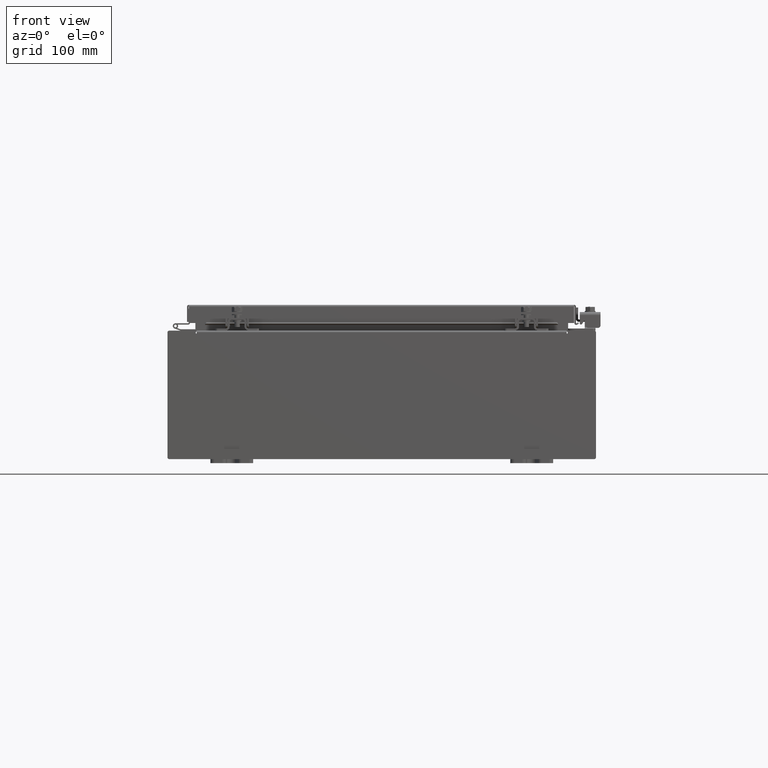
[diagram: clean part render]
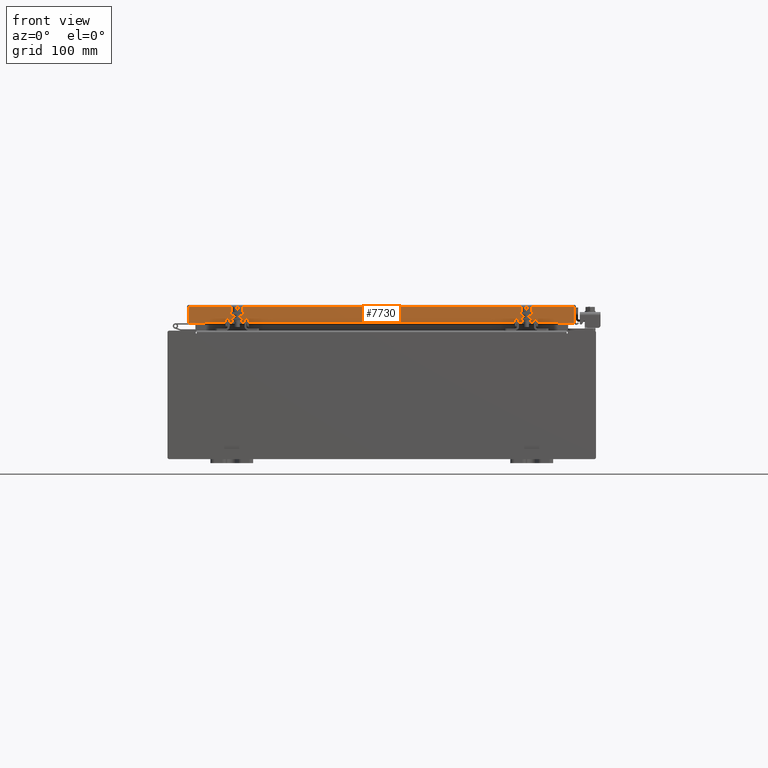
[diagram: same view with one face highlighted and labeled with its STEP entity id]
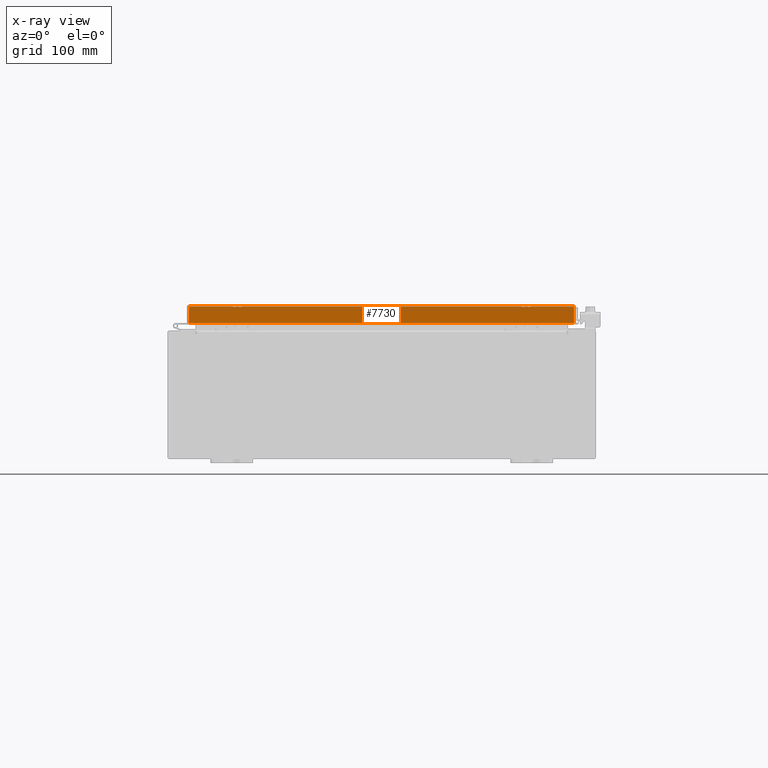
[diagram: x-ray of the same camera — body ghosted, the highlighted face saturated]
A machine part, front view. The second image highlights one B-rep face of the part: STEP entity #7730.
The next image is the same camera in x-ray: the body ghosted, the highlighted face saturated — about 0% of this face is hidden behind the body in this view.
In plain terms, the highlighted planar face has unit normal (-0, 1, -0).
Its self-contained STEP definition (entity closure, byte-faithful):
#473 = EDGE_CURVE ( 'NONE', #5032, #15643, #28205, .T. ) ;
#773 = VECTOR ( 'NONE', #9290, 39.37007874015748100 ) ;
#958 = EDGE_CURVE ( 'NONE', #15643, #23984, #19177, .T. ) ;
#1105 = VERTEX_POINT ( 'NONE', #15437 ) ;
#1768 = DIRECTION ( 'NONE',  ( -1.000000000000000000, -1.203722403024570700E-016, 1.203722403024570700E-016 ) ) ;
#2553 = LINE ( 'NONE', #32036, #14306 ) ;
#3169 = LINE ( 'NONE', #13774, #15652 ) ;
#5032 = VERTEX_POINT ( 'NONE', #28103 ) ;
#6160 = CARTESIAN_POINT ( 'NONE',  ( -8.989157864376267100, -11.09400000000000700, -0.8499999999999975400 ) ) ;
#6659 = LINE ( 'NONE', #25406, #19079 ) ;
#7730 = ADVANCED_FACE ( 'NONE', ( #17451 ), #24196, .F. ) ;
#8361 = VECTOR ( 'NONE', #1768, 39.37007874015748100 ) ;
#9290 = DIRECTION ( 'NONE',  ( -1.000000000000000000, 0.0000000000000000000, 0.0000000000000000000 ) ) ;
#10951 = CARTESIAN_POINT ( 'NONE',  ( 9.077999999999999400, -11.09400000000000300, -0.8499999999999996400 ) ) ;
#11589 = VERTEX_POINT ( 'NONE', #15070 ) ;
#11829 = DIRECTION ( 'NONE',  ( 0.0000000000000000000, 2.818880942772360100E-015, 1.000000000000000000 ) ) ;
#11954 = ORIENTED_EDGE ( 'NONE', *, *, #25688, .F. ) ;
#12251 = CARTESIAN_POINT ( 'NONE',  ( -8.239157864376267100, -11.09399999999999900, -0.8500000000000017500 ) ) ;
#12764 = CARTESIAN_POINT ( 'NONE',  ( 8.239157864376267100, -11.09399999999999900, -0.8500000000000017500 ) ) ;
#13598 = ORIENTED_EDGE ( 'NONE', *, *, #958, .F. ) ;
#13774 = CARTESIAN_POINT ( 'NONE',  ( -8.989157864376267100, -11.09400000000000100, 3.153347883512815000E-014 ) ) ;
#14306 = VECTOR ( 'NONE', #19536, 39.37007874015748100 ) ;
#14784 = CARTESIAN_POINT ( 'NONE',  ( 8.239157864376267100, -11.09399999999999900, -0.8500000000000017500 ) ) ;
#15070 = CARTESIAN_POINT ( 'NONE',  ( -8.989157864376267100, -11.09400000000000100, -0.08769999999999789100 ) ) ;
#15437 = CARTESIAN_POINT ( 'NONE',  ( 8.989157864376267100, -11.09400000000000100, -0.08769999999999897300 ) ) ;
#15583 = DIRECTION ( 'NONE',  ( -0.0000000000000000000, -2.818880942772360100E-015, -1.000000000000000000 ) ) ;
#15643 = VERTEX_POINT ( 'NONE', #14784 ) ;
#15652 = VECTOR ( 'NONE', #16261, 39.37007874015748100 ) ;
#16261 = DIRECTION ( 'NONE',  ( 0.0000000000000000000, -2.818880942772360100E-015, -1.000000000000000000 ) ) ;
#17283 = AXIS2_PLACEMENT_3D ( 'NONE', #31696, #26718, #11829 ) ;
#17451 = FACE_OUTER_BOUND ( 'NONE', #25532, .T. ) ;
#18885 = EDGE_CURVE ( 'NONE', #1105, #5032, #28784, .T. ) ;
#19079 = VECTOR ( 'NONE', #27918, 39.37007874015748100 ) ;
#19177 = LINE ( 'NONE', #12764, #773 ) ;
#19536 = DIRECTION ( 'NONE',  ( 1.000000000000000000, 1.203722403024570700E-016, -1.203722403024570700E-016 ) ) ;
#21929 = ORIENTED_EDGE ( 'NONE', *, *, #18885, .F. ) ;
#22498 = EDGE_CURVE ( 'NONE', #11589, #23689, #3169, .T. ) ;
#22808 = ORIENTED_EDGE ( 'NONE', *, *, #30348, .F. ) ;
#23689 = VERTEX_POINT ( 'NONE', #6160 ) ;
#23984 = VERTEX_POINT ( 'NONE', #12251 ) ;
#24196 = PLANE ( 'NONE',  #17283 ) ;
#25406 = CARTESIAN_POINT ( 'NONE',  ( 9.077999999999999400, -11.09400000000000300, -0.8499999999999996400 ) ) ;
#25532 = EDGE_LOOP ( 'NONE', ( #11954, #26623, #22808, #13598, #25878, #21929 ) ) ;
#25688 = EDGE_CURVE ( 'NONE', #11589, #1105, #2553, .T. ) ;
#25878 = ORIENTED_EDGE ( 'NONE', *, *, #473, .F. ) ;
#26623 = ORIENTED_EDGE ( 'NONE', *, *, #22498, .T. ) ;
#26718 = DIRECTION ( 'NONE',  ( -1.203722403024574200E-016, 1.000000000000000000, -2.818880942772360100E-015 ) ) ;
#27918 = DIRECTION ( 'NONE',  ( -1.000000000000000000, -1.203722403024570700E-016, 1.203722403024570700E-016 ) ) ;
#27991 = VECTOR ( 'NONE', #15583, 39.37007874015748100 ) ;
#28032 = CARTESIAN_POINT ( 'NONE',  ( 8.989157864376267100, -11.09400000000000100, -0.07469999999999978000 ) ) ;
#28103 = CARTESIAN_POINT ( 'NONE',  ( 8.989157864376267100, -11.09400000000000300, -0.8499999999999996400 ) ) ;
#28205 = LINE ( 'NONE', #10951, #8361 ) ;
#28784 = LINE ( 'NONE', #28032, #27991 ) ;
#30348 = EDGE_CURVE ( 'NONE', #23984, #23689, #6659, .T. ) ;
#31696 = CARTESIAN_POINT ( 'NONE',  ( 1.335409633915462800E-015, -11.09400000000000100, 3.153347883512815000E-014 ) ) ;
#32036 = CARTESIAN_POINT ( 'NONE',  ( 9.077999999999999400, -11.09400000000000100, -0.08770000000000007000 ) ) ;